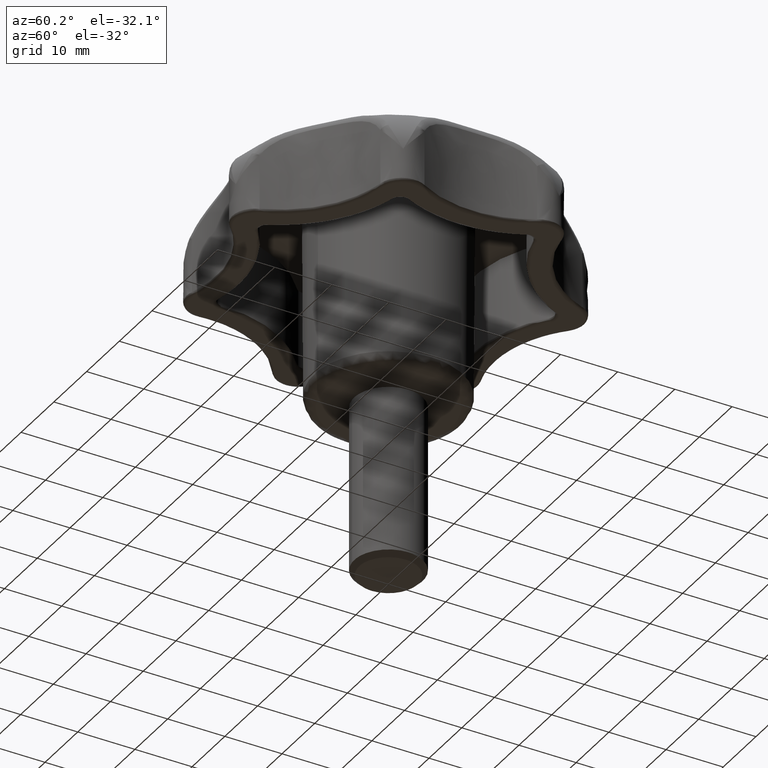
[diagram: clean part render]
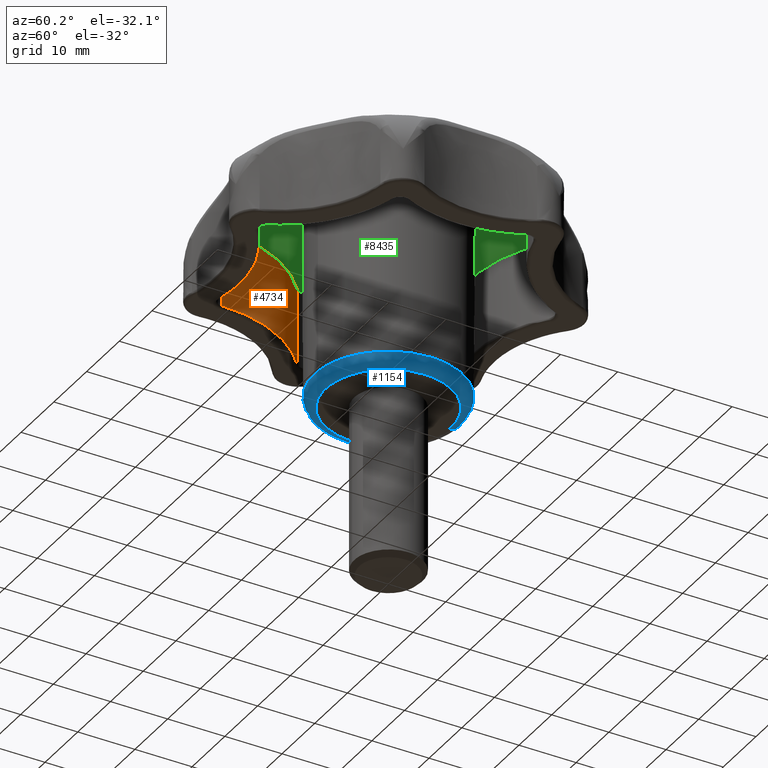
[diagram: same view with three faces highlighted in distinct colors, each labeled with its STEP entity id]
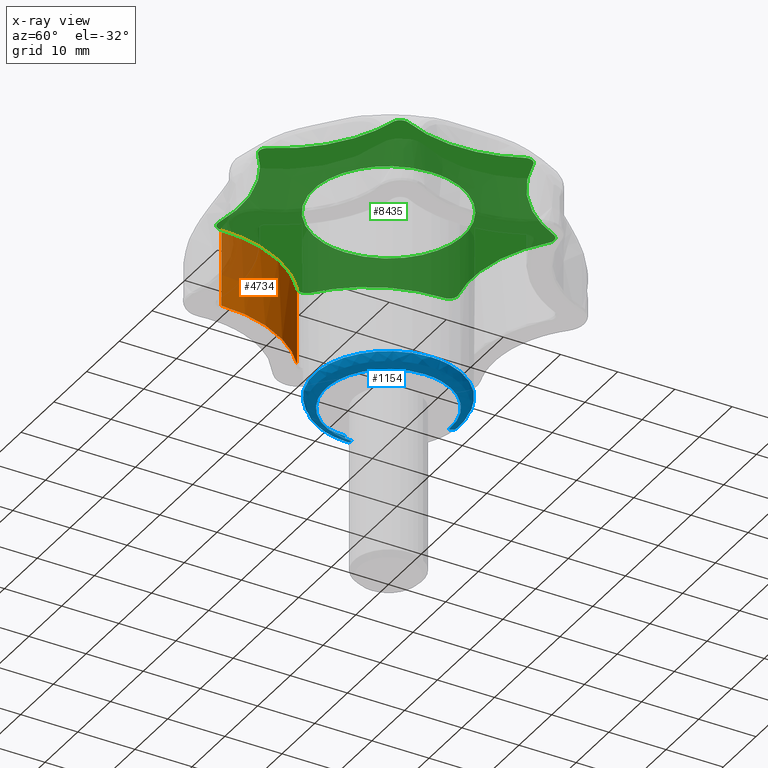
[diagram: x-ray of the same camera — body ghosted, the three highlighted faces saturated]
A machine part, auxiliary view with three faces highlighted in distinct colors.
The next image is the same camera in x-ray (body ghosted, the three faces saturated) — at least one of them is partly hidden behind the body in this view.
Their STEP definitions:

[orange] entity #4734 — the highlighted face is a freeform B-spline surface patch.
#2321=CARTESIAN_POINT('',(-25.848929655001552,-1.180508095190458,21.500000000000000));
#2322=VERTEX_POINT('',#2321);
#2471=CARTESIAN_POINT('',(-17.039502153280051,-19.473472969081499,21.500000000000000));
#2472=VERTEX_POINT('',#2471);
#2504=CARTESIAN_POINT('',(-17.039502153280040,-19.473472969081509,21.500000000000000));
#2505=CARTESIAN_POINT('',(-16.945132652359913,-8.160346250905121,21.500000000000004));
#2506=CARTESIAN_POINT('',(-25.848929655001559,-1.180508095190481,21.500000000000000));
#2514=(BOUNDED_CURVE()B_SPLINE_CURVE(2,(#2504,#2505,#2506),.UNSPECIFIED.,.F.,.U.)CURVE()GEOMETRIC_REPRESENTATION_ITEM()QUASI_UNIFORM_CURVE()RATIONAL_B_SPLINE_CURVE((1.0,0.897318369764951,1.0))REPRESENTATION_ITEM(''));
#2515=EDGE_CURVE('',#2472,#2322,#2514,.T.);
#4669=CARTESIAN_POINT('',(-25.848929655001552,-1.180508095190458,34.999712895857549));
#4670=VERTEX_POINT('',#4669);
#4671=CARTESIAN_POINT('',(-25.848929655001552,-1.180508095190458,34.999712895857549));
#4672=CARTESIAN_POINT('',(-25.848929655001552,-1.180508095190458,21.500000000000000));
#4673=QUASI_UNIFORM_CURVE('',1,(#4671,#4672),.UNSPECIFIED.,.F.,.U.);
#4674=EDGE_CURVE('',#4670,#2322,#4673,.T.);
#4696=CARTESIAN_POINT('',(-17.062260714837759,-20.322365941120339,35.337205718253998));
#4697=CARTESIAN_POINT('',(-17.062260714837759,-20.322365941120339,21.154069857043648));
#4698=CARTESIAN_POINT('',(-16.496879289862349,-7.840462291901449,35.337205718253990));
#4699=CARTESIAN_POINT('',(-16.496879289862349,-7.840462291901449,21.154069857043641));
#4700=CARTESIAN_POINT('',(-26.660436675473299,-0.572747648804610,35.337205718253990));
#4701=CARTESIAN_POINT('',(-26.660436675473299,-0.572747648804610,21.154069857043638));
#4709=(BOUNDED_SURFACE()B_SPLINE_SURFACE(1,2,((#4696,#4698,#4700),(#4697,#4699,#4701)),.UNSPECIFIED.,.F.,.F.,.U.)B_SPLINE_SURFACE_WITH_KNOTS((2,2),(3,3),(0.0,14.183135861210349),(0.0,23.375953986370209),.UNSPECIFIED.)GEOMETRIC_REPRESENTATION_ITEM()RATIONAL_B_SPLINE_SURFACE(((1.0,0.874871321059215,0.991283316149242),(1.0,0.874871321059215,0.991283316149242)))REPRESENTATION_ITEM('')SURFACE());
#4710=CARTESIAN_POINT('',(-17.039502153280051,-19.473472969081499,34.999712895857549));
#4711=VERTEX_POINT('',#4710);
#4712=CARTESIAN_POINT('',(-17.039502153280051,-19.473472969081499,34.999712895857549));
#4713=CARTESIAN_POINT('',(-17.039502153280051,-19.473472969081499,21.500000000000000));
#4714=QUASI_UNIFORM_CURVE('',1,(#4712,#4713),.UNSPECIFIED.,.F.,.U.);
#4715=EDGE_CURVE('',#4711,#2472,#4714,.T.);
#4716=ORIENTED_EDGE('',*,*,#4715,.T.);
#4717=ORIENTED_EDGE('',*,*,#2515,.T.);
#4718=ORIENTED_EDGE('',*,*,#4674,.F.);
#4719=CARTESIAN_POINT('',(-25.848929655001569,-1.180508095190474,34.999712895857549));
#4720=CARTESIAN_POINT('',(-16.945132652359913,-8.160346250905112,34.999712895857556));
#4721=CARTESIAN_POINT('',(-17.039502153280040,-19.473472969081499,34.999712895857549));
#4729=(BOUNDED_CURVE()B_SPLINE_CURVE(2,(#4719,#4720,#4721),.UNSPECIFIED.,.F.,.U.)CURVE()GEOMETRIC_REPRESENTATION_ITEM()QUASI_UNIFORM_CURVE()RATIONAL_B_SPLINE_CURVE((1.0,0.897318369764951,1.0))REPRESENTATION_ITEM(''));
#4730=EDGE_CURVE('',#4670,#4711,#4729,.T.);
#4731=ORIENTED_EDGE('',*,*,#4730,.T.);
#4732=EDGE_LOOP('',(#4716,#4717,#4718,#4731));
#4733=FACE_OUTER_BOUND('',#4732,.T.);
#4734=ADVANCED_FACE('',(#4733),#4709,.T.);

[blue] entity #1154 — the highlighted face is a freeform B-spline surface patch.
#857=CARTESIAN_POINT('',(13.010417000000000,0.0,1.989527999999895));
#858=VERTEX_POINT('',#857);
#859=CARTESIAN_POINT('',(8.540491611266415,-9.814833340262595,1.989527598965767));
#860=VERTEX_POINT('',#859);
#861=CARTESIAN_POINT('',(13.010417000000000,0.0,1.989527999999895));
#862=CARTESIAN_POINT('',(13.010417000000002,-5.925275674363281,1.989527999999895));
#863=CARTESIAN_POINT('',(8.540491611266415,-9.814833340262595,1.989527598965766));
#871=(BOUNDED_CURVE()B_SPLINE_CURVE(2,(#861,#862,#863),.UNSPECIFIED.,.F.,.U.)B_SPLINE_CURVE_WITH_KNOTS((3,3),(0.500000000000000,0.635463022220170),.UNSPECIFIED.)CURVE()GEOMETRIC_REPRESENTATION_ITEM()RATIONAL_B_SPLINE_CURVE((1.0,0.841295197566944,0.854579452561383))REPRESENTATION_ITEM(''));
#872=EDGE_CURVE('',#858,#860,#871,.T.);
#874=CARTESIAN_POINT('',(-0.907258681808861,12.978745401543840,1.989527999441567));
#875=VERTEX_POINT('',#874);
#876=CARTESIAN_POINT('',(-0.907258681808861,12.978745401543833,1.989527999441566));
#877=CARTESIAN_POINT('',(-0.454182154678146,13.010416999999999,1.989527999999895));
#878=CARTESIAN_POINT('',(0.0,13.010417000000000,1.989527999999895));
#879=CARTESIAN_POINT('',(13.010417000000002,13.010417000000002,1.989527999999895));
#880=CARTESIAN_POINT('',(13.010417000000000,0.0,1.989527999999895));
#888=(BOUNDED_CURVE()B_SPLINE_CURVE(2,(#876,#877,#878,#879,#880),.UNSPECIFIED.,.F.,.U.)B_SPLINE_CURVE_WITH_KNOTS((3,2,3),(0.237833686533898,0.250000000000000,0.500000000000000),.UNSPECIFIED.)CURVE()GEOMETRIC_REPRESENTATION_ITEM()RATIONAL_B_SPLINE_CURVE((0.972879876384451,0.985746277151280,1.0,0.707106781186548,1.0))REPRESENTATION_ITEM(''));
#889=EDGE_CURVE('',#875,#858,#888,.T.);
#906=CARTESIAN_POINT('',(-13.009389752163379,-0.163489418982572,1.989527999441639));
#907=VERTEX_POINT('',#906);
#921=CARTESIAN_POINT('',(1.246993208103250,-12.950519620958580,1.989528000000561));
#922=VERTEX_POINT('',#921);
#923=CARTESIAN_POINT('',(1.246993208103250,-12.950519620958582,1.989528000000561));
#924=CARTESIAN_POINT('',(0.624935142835919,-13.010416999999997,1.989527999999895));
#925=CARTESIAN_POINT('',(0.0,-13.010417000000000,1.989527999999895));
#926=CARTESIAN_POINT('',(-12.847942000447263,-13.010417000000000,1.989527999999895));
#927=CARTESIAN_POINT('',(-13.009389752163383,-0.163489418982572,1.989527999441639));
#935=(BOUNDED_CURVE()B_SPLINE_CURVE(2,(#923,#924,#925,#926,#927),.UNSPECIFIED.,.F.,.U.)B_SPLINE_CURVE_WITH_KNOTS((3,2,3),(0.733348904761854,0.750000000000000,0.997784295920063),.UNSPECIFIED.)CURVE()GEOMETRIC_REPRESENTATION_ITEM()RATIONAL_B_SPLINE_CURVE((0.963582689685472,0.980492028475721,1.0,0.709702639986191,0.994854295640179))REPRESENTATION_ITEM(''));
#936=EDGE_CURVE('',#922,#907,#935,.T.);
#1020=CARTESIAN_POINT('',(8.540491611266415,-9.814833340262595,1.989527598965766));
#1021=CARTESIAN_POINT('',(5.396043492940325,-12.551011518019743,1.989527999999895));
#1022=CARTESIAN_POINT('',(1.246993208103250,-12.950519620958580,1.989528000000561));
#1030=(BOUNDED_CURVE()B_SPLINE_CURVE(2,(#1020,#1021,#1022),.UNSPECIFIED.,.F.,.U.)B_SPLINE_CURVE_WITH_KNOTS((3,3),(0.635463022220170,0.733348904761855),.UNSPECIFIED.)CURVE()GEOMETRIC_REPRESENTATION_ITEM()RATIONAL_B_SPLINE_CURVE((0.854579452561383,0.864178684903372,0.963582689685473))REPRESENTATION_ITEM(''));
#1031=EDGE_CURVE('',#860,#922,#1030,.T.);
#1051=CARTESIAN_POINT('',(-0.906972034144548,12.974655071517804,2.128429248260468));
#1052=CARTESIAN_POINT('',(-0.535643338611561,13.000612196425353,2.128429248260467));
#1053=CARTESIAN_POINT('',(-0.163437893612326,13.005289714209153,2.128429248260467));
#1054=CARTESIAN_POINT('',(12.841851820596823,13.168727607821483,2.128429248260468));
#1055=CARTESIAN_POINT('',(13.005289714209153,0.163437893612327,2.128429248260467));
#1056=CARTESIAN_POINT('',(13.168727607821483,-12.841851820596823,2.128429248260468));
#1057=CARTESIAN_POINT('',(0.163437893612327,-13.005289714209153,2.128429248260467));
#1058=CARTESIAN_POINT('',(-12.841851820596823,-13.168727607821483,2.128429248260468));
#1059=CARTESIAN_POINT('',(-13.005289714209153,-0.163437893612328,2.128429248260467));
#1060=CARTESIAN_POINT('',(-0.917211990149329,13.121142385467740,-0.153632075987384));
#1061=CARTESIAN_POINT('',(-0.541690894671886,13.147392573233967,-0.153632075987384));
#1062=CARTESIAN_POINT('',(-0.165283150993037,13.152122901440270,-0.153632075987384));
#1063=CARTESIAN_POINT('',(12.986839750447235,13.317406052433311,-0.153632075987384));
#1064=CARTESIAN_POINT('',(13.152122901440270,0.165283150993038,-0.153632075987384));
#1065=CARTESIAN_POINT('',(13.317406052433313,-12.986839750447235,-0.153632075987384));
#1066=CARTESIAN_POINT('',(0.165283150993039,-13.152122901440270,-0.153632075987384));
#1067=CARTESIAN_POINT('',(-12.986839750447235,-13.317406052433313,-0.153632075987384));
#1068=CARTESIAN_POINT('',(-13.152122901440270,-0.165283150993040,-0.153632075987384));
#1069=CARTESIAN_POINT('',(-0.758130643400704,10.845410031357495,0.004806098224471));
#1070=CARTESIAN_POINT('',(-0.447739967327553,10.867107383719150,0.004806098224471));
#1071=CARTESIAN_POINT('',(-0.136616423412919,10.871017283289861,0.004806098224471));
#1072=CARTESIAN_POINT('',(10.734400859876940,11.007633706702780,0.004806098224471));
#1073=CARTESIAN_POINT('',(10.871017283289861,0.136616423412920,0.004806098224471));
#1074=CARTESIAN_POINT('',(11.007633706702780,-10.734400859876940,0.004806098224471));
#1075=CARTESIAN_POINT('',(0.136616423412921,-10.871017283289861,0.004806098224471));
#1076=CARTESIAN_POINT('',(-10.734400859876938,-11.007633706702782,0.004806098224471));
#1077=CARTESIAN_POINT('',(-10.871017283289861,-0.136616423412921,0.004806098224471));
#1085=(BOUNDED_SURFACE()B_SPLINE_SURFACE(2,2,((#1051,#1060,#1069),(#1052,#1061,#1070),(#1053,#1062,#1071),(#1054,#1063,#1072),(#1055,#1064,#1073),(#1056,#1065,#1074),(#1057,#1066,#1075),(#1058,#1067,#1076),(#1059,#1068,#1077)),.UNSPECIFIED.,.F.,.F.,.U.)B_SPLINE_SURFACE_WITH_KNOTS((3,2,2,2,3),(3,3),(0.0,0.861982017645189,22.411553010047299,43.961124002449417,65.510694994851534),(0.0,3.631259707169273),.UNSPECIFIED.)GEOMETRIC_REPRESENTATION_ITEM()RATIONAL_B_SPLINE_SURFACE(((0.893563128826322,0.588938691914255,0.895626370215691),(0.903415996384335,0.595432620260249,0.905501988090378),(0.914125634146218,0.602491237442276,0.916236354455292),(0.646384434761244,0.426025639600907,0.647876939404978),(0.914125634146218,0.602491237442276,0.916236354455292),(0.646384434761244,0.426025639600907,0.647876939404978),(0.914125634146218,0.602491237442276,0.916236354455292),(0.646384434761244,0.426025639600907,0.647876939404978),(0.914125634146218,0.602491237442276,0.916236354455292)))REPRESENTATION_ITEM('')SURFACE());
#1086=CARTESIAN_POINT('',(-0.767794145138722,10.983641448051660,1.564987E-015));
#1087=VERTEX_POINT('',#1086);
#1088=CARTESIAN_POINT('',(11.010444415883899,0.0,0.0));
#1089=VERTEX_POINT('',#1088);
#1090=CARTESIAN_POINT('',(-0.767794145138721,10.983641448051662,1.564987E-015));
#1091=CARTESIAN_POINT('',(-0.384364931463476,11.010444415883898,0.0));
#1092=CARTESIAN_POINT('',(0.0,11.010444415883899,0.0));
#1093=CARTESIAN_POINT('',(11.010444415883899,11.010444415883899,0.0));
#1094=CARTESIAN_POINT('',(11.010444415883899,0.0,0.0));
#1102=(BOUNDED_CURVE()B_SPLINE_CURVE(2,(#1090,#1091,#1092,#1093,#1094),.UNSPECIFIED.,.F.,.U.)B_SPLINE_CURVE_WITH_KNOTS((3,2,3),(0.237833684927699,0.250000000000000,0.500000000000000),.UNSPECIFIED.)CURVE()GEOMETRIC_REPRESENTATION_ITEM()RATIONAL_B_SPLINE_CURVE((0.972879872987201,0.985746275269500,1.0,0.707106781186548,1.0))REPRESENTATION_ITEM(''));
#1103=EDGE_CURVE('',#1087,#1089,#1102,.T.);
#1104=ORIENTED_EDGE('',*,*,#1103,.F.);
#1105=CARTESIAN_POINT('',(-0.907258681808861,12.978745401543836,1.989527999441566));
#1106=CARTESIAN_POINT('',(-0.906532248723201,12.968353448674080,0.000000096980009));
#1107=CARTESIAN_POINT('',(-0.767794145138722,10.983641448051658,1.564987E-015));
#1115=(BOUNDED_CURVE()B_SPLINE_CURVE(2,(#1105,#1106,#1107),.UNSPECIFIED.,.F.,.U.)B_SPLINE_CURVE_WITH_KNOTS((3,3),(-1.729315948450103,-0.265249258991811),.UNSPECIFIED.)CURVE()GEOMETRIC_REPRESENTATION_ITEM()RATIONAL_B_SPLINE_CURVE((0.867155928361317,0.615439598598310,0.869031694328936))REPRESENTATION_ITEM(''));
#1116=EDGE_CURVE('',#875,#1087,#1115,.T.);
#1117=ORIENTED_EDGE('',*,*,#1116,.F.);
#1118=ORIENTED_EDGE('',*,*,#889,.T.);
#1119=ORIENTED_EDGE('',*,*,#872,.T.);
#1120=ORIENTED_EDGE('',*,*,#1031,.T.);
#1121=ORIENTED_EDGE('',*,*,#936,.T.);
#1122=CARTESIAN_POINT('',(-11.009575081032260,-0.138357684057013,4.058610E-016));
#1123=VERTEX_POINT('',#1122);
#1124=CARTESIAN_POINT('',(-13.009389752163381,-0.163489418982572,1.989527999441639));
#1125=CARTESIAN_POINT('',(-12.998973262192621,-0.163358514556927,7.079282E-009));
#1126=CARTESIAN_POINT('',(-11.009575081032263,-0.138357684057013,4.058610E-016));
#1134=(BOUNDED_CURVE()B_SPLINE_CURVE(2,(#1124,#1125,#1126),.UNSPECIFIED.,.F.,.U.)B_SPLINE_CURVE_WITH_KNOTS((3,3),(-1.729315948450178,-0.265249212038928),.UNSPECIFIED.)CURVE()GEOMETRIC_REPRESENTATION_ITEM()RATIONAL_B_SPLINE_CURVE((0.887110774847553,0.629601982949969,0.889029722266133))REPRESENTATION_ITEM(''));
#1135=EDGE_CURVE('',#907,#1123,#1134,.T.);
#1136=ORIENTED_EDGE('',*,*,#1135,.T.);
#1137=CARTESIAN_POINT('',(11.010444415883899,0.0,0.0));
#1138=CARTESIAN_POINT('',(11.010444415883899,-11.010444415883899,0.0));
#1139=CARTESIAN_POINT('',(0.0,-11.010444415883899,0.0));
#1140=CARTESIAN_POINT('',(-10.872945213577532,-11.010444415883899,0.0));
#1141=CARTESIAN_POINT('',(-11.009575081032263,-0.138357684057013,4.058610E-016));
#1149=(BOUNDED_CURVE()B_SPLINE_CURVE(2,(#1137,#1138,#1139,#1140,#1141),.UNSPECIFIED.,.F.,.U.)B_SPLINE_CURVE_WITH_KNOTS((3,2,3),(0.500000000000000,0.750000000000000,0.997784295910582),.UNSPECIFIED.)CURVE()GEOMETRIC_REPRESENTATION_ITEM()RATIONAL_B_SPLINE_CURVE((1.0,0.707106781186548,1.0,0.709702639997299,0.994854295618357))REPRESENTATION_ITEM(''));
#1150=EDGE_CURVE('',#1089,#1123,#1149,.T.);
#1151=ORIENTED_EDGE('',*,*,#1150,.F.);
#1152=EDGE_LOOP('',(#1104,#1117,#1118,#1119,#1120,#1121,#1136,#1151));
#1153=FACE_OUTER_BOUND('',#1152,.T.);
#1154=ADVANCED_FACE('',(#1153),#1085,.T.);

[green] entity #8435 — the highlighted face is a freeform B-spline surface patch.
#938=CARTESIAN_POINT('',(1.263554077127847,-13.122567764419060,34.999712816159203));
#939=VERTEX_POINT('',#938);
#945=CARTESIAN_POINT('',(-13.183260357310299,0.0,34.999712895857549));
#946=VERTEX_POINT('',#945);
#947=CARTESIAN_POINT('',(1.263554077127846,-13.122567764419053,34.999712816159203));
#948=CARTESIAN_POINT('',(0.633234669423789,-13.183260357310305,34.999712895857556));
#949=CARTESIAN_POINT('',(0.0,-13.183260357310299,34.999712895857549));
#950=CARTESIAN_POINT('',(-13.183260357310301,-13.183260357310301,34.999712895857549));
#951=CARTESIAN_POINT('',(-13.183260357310299,0.0,34.999712895857549));
#959=(BOUNDED_CURVE()B_SPLINE_CURVE(2,(#947,#948,#949,#950,#951),.UNSPECIFIED.,.F.,.U.)B_SPLINE_CURVE_WITH_KNOTS((3,2,3),(0.733348975281955,0.750000000000000,1.0),.UNSPECIFIED.)CURVE()GEOMETRIC_REPRESENTATION_ITEM()RATIONAL_B_SPLINE_CURVE((0.963582832913126,0.980492111095157,1.0,0.707106781186548,1.0))REPRESENTATION_ITEM(''));
#960=EDGE_CURVE('',#939,#946,#959,.T.);
#962=CARTESIAN_POINT('',(13.183260357310299,0.0,34.999712895857549));
#963=VERTEX_POINT('',#962);
#964=CARTESIAN_POINT('',(-13.183260357310299,0.0,34.999712895857549));
#965=CARTESIAN_POINT('',(-13.183260357310301,13.183260357310301,34.999712895857549));
#966=CARTESIAN_POINT('',(0.0,13.183260357310299,34.999712895857549));
#967=CARTESIAN_POINT('',(13.183260357310301,13.183260357310301,34.999712895857549));
#968=CARTESIAN_POINT('',(13.183260357310299,0.0,34.999712895857549));
#976=(BOUNDED_CURVE()B_SPLINE_CURVE(2,(#964,#965,#966,#967,#968),.UNSPECIFIED.,.F.,.U.)B_SPLINE_CURVE_WITH_KNOTS((3,2,3),(0.0,0.250000000000000,0.500000000000000),.UNSPECIFIED.)CURVE()GEOMETRIC_REPRESENTATION_ITEM()RATIONAL_B_SPLINE_CURVE((1.0,0.707106781186548,1.0,0.707106781186548,1.0))REPRESENTATION_ITEM(''));
#977=EDGE_CURVE('',#946,#963,#976,.T.);
#979=CARTESIAN_POINT('',(8.653953647450940,-9.945221963590065,34.999712813824132));
#980=VERTEX_POINT('',#979);
#981=CARTESIAN_POINT('',(13.183260357310299,0.0,34.999712895857549));
#982=CARTESIAN_POINT('',(13.183260357310294,-6.003991974046724,34.999712895857549));
#983=CARTESIAN_POINT('',(8.653953647450940,-9.945221963590065,34.999712813824132));
#991=(BOUNDED_CURVE()B_SPLINE_CURVE(2,(#981,#982,#983),.UNSPECIFIED.,.F.,.U.)B_SPLINE_CURVE_WITH_KNOTS((3,3),(0.500000000000000,0.635463003754399),.UNSPECIFIED.)CURVE()GEOMETRIC_REPRESENTATION_ITEM()RATIONAL_B_SPLINE_CURVE((1.0,0.841295219200941,0.854579448939674))REPRESENTATION_ITEM(''));
#992=EDGE_CURVE('',#963,#980,#991,.T.);
#1034=CARTESIAN_POINT('',(8.653953647450940,-9.945221963590065,34.999712813824139));
#1035=CARTESIAN_POINT('',(5.467728531620133,-12.717753564730348,34.999712895857542));
#1036=CARTESIAN_POINT('',(1.263554077127846,-13.122567764419053,34.999712816159203));
#1044=(BOUNDED_CURVE()B_SPLINE_CURVE(2,(#1034,#1035,#1036),.UNSPECIFIED.,.F.,.U.)B_SPLINE_CURVE_WITH_KNOTS((3,3),(0.635463003754400,0.733348975281955),.UNSPECIFIED.)CURVE()GEOMETRIC_REPRESENTATION_ITEM()RATIONAL_B_SPLINE_CURVE((0.854579448939674,0.864178673066793,0.963582832913126))REPRESENTATION_ITEM(''));
#1045=EDGE_CURVE('',#980,#939,#1044,.T.);
#4224=CARTESIAN_POINT('',(4.601017605025820,-25.463530358067899,34.999712895857549));
#4225=VERTEX_POINT('',#4224);
#4232=CARTESIAN_POINT('',(-15.193586375749200,-20.945540759110958,34.999712895857549));
#4233=VERTEX_POINT('',#4232);
#4239=CARTESIAN_POINT('',(-15.193586375749209,-20.945540759110919,34.999712895857549));
#4240=CARTESIAN_POINT('',(-4.185102419384345,-18.336129714499211,34.999712895857549));
#4241=CARTESIAN_POINT('',(4.601017605025820,-25.463530358067899,34.999712895857549));
#4249=(BOUNDED_CURVE()B_SPLINE_CURVE(2,(#4239,#4240,#4241),.UNSPECIFIED.,.F.,.U.)CURVE()GEOMETRIC_REPRESENTATION_ITEM()QUASI_UNIFORM_CURVE()RATIONAL_B_SPLINE_CURVE((1.0,0.897318367529791,1.0))REPRESENTATION_ITEM(''));
#4250=EDGE_CURVE('',#4233,#4225,#4249,.T.);
#4269=CARTESIAN_POINT('',(6.902837418404320,-24.938154919497350,34.999712895857549));
#4270=VERTEX_POINT('',#4269);
#4278=CARTESIAN_POINT('',(6.902837418404320,-24.938154919497350,34.999712895857549));
#4279=CARTESIAN_POINT('',(6.591563297664797,-25.598557667971736,34.999712895857549));
#4280=CARTESIAN_POINT('',(5.879783564327663,-25.761016830979301,34.999712895857549));
#4281=CARTESIAN_POINT('',(5.168003830990528,-25.923475993986855,34.999712895857549));
#4282=CARTESIAN_POINT('',(4.601017605025824,-25.463530358067899,34.999712895857549));
#4290=(BOUNDED_CURVE()B_SPLINE_CURVE(2,(#4278,#4279,#4280,#4281,#4282),.UNSPECIFIED.,.F.,.U.)B_SPLINE_CURVE_WITH_KNOTS((3,2,3),(0.0,0.500000000000000,1.0),.UNSPECIFIED.)CURVE()GEOMETRIC_REPRESENTATION_ITEM()RATIONAL_B_SPLINE_CURVE((1.0,0.899151415982226,1.0,0.899151415982226,1.0))REPRESENTATION_ITEM(''));
#4291=EDGE_CURVE('',#4270,#4225,#4290,.T.);
#4310=CARTESIAN_POINT('',(22.776877538892052,-12.279031163723101,34.999712895857549));
#4311=VERTEX_POINT('',#4310);
#4319=CARTESIAN_POINT('',(6.902837418404300,-24.938154919497340,34.999712895857549));
#4320=CARTESIAN_POINT('',(11.726395205329636,-14.704434586903629,34.999712895857549));
#4321=CARTESIAN_POINT('',(22.776877538892052,-12.279031163723101,34.999712895857549));
#4329=(BOUNDED_CURVE()B_SPLINE_CURVE(2,(#4319,#4320,#4321),.UNSPECIFIED.,.F.,.U.)CURVE()GEOMETRIC_REPRESENTATION_ITEM()QUASI_UNIFORM_CURVE()RATIONAL_B_SPLINE_CURVE((1.0,0.897318369884232,1.0))REPRESENTATION_ITEM(''));
#4330=EDGE_CURVE('',#4270,#4311,#4329,.T.);
#4349=CARTESIAN_POINT('',(23.801283406814701,-10.151829418366839,34.999712895857549));
#4350=VERTEX_POINT('',#4349);
#4358=CARTESIAN_POINT('',(23.801283406814701,-10.151829418366839,34.999712895857549));
#4359=CARTESIAN_POINT('',(24.123531145737036,-10.806947689908835,34.999712895857549));
#4360=CARTESIAN_POINT('',(23.806759459316591,-11.464731281701029,34.999712895857549));
#4361=CARTESIAN_POINT('',(23.489987772896136,-12.122514873493220,34.999712895857549));
#4362=CARTESIAN_POINT('',(22.776877538892052,-12.279031163723090,34.999712895857549));
#4370=(BOUNDED_CURVE()B_SPLINE_CURVE(2,(#4358,#4359,#4360,#4361,#4362),.UNSPECIFIED.,.F.,.U.)B_SPLINE_CURVE_WITH_KNOTS((3,2,3),(0.0,0.500000000000000,1.0),.UNSPECIFIED.)CURVE()GEOMETRIC_REPRESENTATION_ITEM()RATIONAL_B_SPLINE_CURVE((1.0,0.899151385852331,1.0,0.899151385852331,1.0))REPRESENTATION_ITEM(''));
#4371=EDGE_CURVE('',#4350,#4311,#4370,.T.);
#4390=CARTESIAN_POINT('',(23.801283560425151,10.151829168367360,34.999712895857549));
#4391=VERTEX_POINT('',#4390);
#4399=CARTESIAN_POINT('',(23.801283406814729,-10.151829418366830,34.999712895857549));
#4400=CARTESIAN_POINT('',(18.807677982301829,-0.000000087219858,34.999712895857549));
#4401=CARTESIAN_POINT('',(23.801283560425151,10.151829168367360,34.999712895857549));
#4409=(BOUNDED_CURVE()B_SPLINE_CURVE(2,(#4399,#4400,#4401),.UNSPECIFIED.,.F.,.U.)CURVE()GEOMETRIC_REPRESENTATION_ITEM()QUASI_UNIFORM_CURVE()RATIONAL_B_SPLINE_CURVE((1.0,0.897318375118684,1.0))REPRESENTATION_ITEM(''));
#4410=EDGE_CURVE('',#4350,#4391,#4409,.T.);
#4429=CARTESIAN_POINT('',(22.776877403655551,12.279030489579259,34.999712895857549));
#4430=VERTEX_POINT('',#4429);
#4438=CARTESIAN_POINT('',(22.776877403655551,12.279030489579259,34.999712895857549));
#4439=CARTESIAN_POINT('',(23.489987433965130,12.122514048516353,34.999712895857549));
#4440=CARTESIAN_POINT('',(23.806759254796859,11.464730706390700,34.999712895857549));
#4441=CARTESIAN_POINT('',(24.123531075628595,10.806947364265053,34.999712895857549));
#4442=CARTESIAN_POINT('',(23.801283560425130,10.151829168367369,34.999712895857549));
#4450=(BOUNDED_CURVE()B_SPLINE_CURVE(2,(#4438,#4439,#4440,#4441,#4442),.UNSPECIFIED.,.F.,.U.)B_SPLINE_CURVE_WITH_KNOTS((3,2,3),(0.0,0.500000000000000,1.0),.UNSPECIFIED.)CURVE()GEOMETRIC_REPRESENTATION_ITEM()RATIONAL_B_SPLINE_CURVE((1.0,0.899151425155168,1.0,0.899151425155168,1.0))REPRESENTATION_ITEM(''));
#4451=EDGE_CURVE('',#4430,#4391,#4450,.T.);
#4470=CARTESIAN_POINT('',(6.902837016191000,24.938155092206699,34.999712895857549));
#4471=VERTEX_POINT('',#4470);
#4479=CARTESIAN_POINT('',(22.776877403655561,12.279030489579281,34.999712895857549));
#4480=CARTESIAN_POINT('',(11.726395009851055,14.704434623547593,34.999712895857549));
#4481=CARTESIAN_POINT('',(6.902837016191000,24.938155092206699,34.999712895857549));
#4489=(BOUNDED_CURVE()B_SPLINE_CURVE(2,(#4479,#4480,#4481),.UNSPECIFIED.,.F.,.U.)CURVE()GEOMETRIC_REPRESENTATION_ITEM()QUASI_UNIFORM_CURVE()RATIONAL_B_SPLINE_CURVE((1.0,0.897318366620468,1.0))REPRESENTATION_ITEM(''));
#4490=EDGE_CURVE('',#4430,#4471,#4489,.T.);
#4509=CARTESIAN_POINT('',(4.601017722937180,25.463529842958799,34.999712895857549));
#4510=VERTEX_POINT('',#4509);
#4518=CARTESIAN_POINT('',(4.601017722937180,25.463529842958799,34.999712895857549));
#4519=CARTESIAN_POINT('',(5.168003555900789,25.923475916824010,34.999712895857549));
#4520=CARTESIAN_POINT('',(5.879783291029333,25.761016893357869,34.999712895857549));
#4521=CARTESIAN_POINT('',(6.591563026157877,25.598557869891714,34.999712895857549));
#4522=CARTESIAN_POINT('',(6.902837016191018,24.938155092206710,34.999712895857549));
#4530=(BOUNDED_CURVE()B_SPLINE_CURVE(2,(#4518,#4519,#4520,#4521,#4522),.UNSPECIFIED.,.F.,.U.)B_SPLINE_CURVE_WITH_KNOTS((3,2,3),(0.0,0.500000000000000,1.0),.UNSPECIFIED.)CURVE()GEOMETRIC_REPRESENTATION_ITEM()RATIONAL_B_SPLINE_CURVE((1.0,0.899151422894515,1.0,0.899151422894515,1.0))REPRESENTATION_ITEM(''));
#4531=EDGE_CURVE('',#4510,#4471,#4530,.T.);
#4550=CARTESIAN_POINT('',(-15.193585953755500,20.945540820057950,34.999712895857549));
#4551=VERTEX_POINT('',#4550);
#4559=CARTESIAN_POINT('',(4.601017722937188,25.463529842958799,34.999712895857549));
#4560=CARTESIAN_POINT('',(-4.185102368894697,18.336129903000661,34.999712895857563));
#4561=CARTESIAN_POINT('',(-15.193585953755500,20.945540820057950,34.999712895857549));
#4569=(BOUNDED_CURVE()B_SPLINE_CURVE(2,(#4559,#4560,#4561),.UNSPECIFIED.,.F.,.U.)CURVE()GEOMETRIC_REPRESENTATION_ITEM()QUASI_UNIFORM_CURVE()RATIONAL_B_SPLINE_CURVE((1.0,0.897318373570051,1.0))REPRESENTATION_ITEM(''));
#4570=EDGE_CURVE('',#4510,#4551,#4569,.T.);
#4589=CARTESIAN_POINT('',(-17.039502153280051,19.473471969081501,34.999712895857549));
#4590=VERTEX_POINT('',#4589);
#4598=CARTESIAN_POINT('',(-17.039502153280051,19.473471969081501,34.999712895857549));
#4599=CARTESIAN_POINT('',(-17.045591706692093,20.203530996049693,34.999712895857549));
#4600=CARTESIAN_POINT('',(-16.474788730096648,20.658731201924159,34.999712895857549));
#4601=CARTESIAN_POINT('',(-15.903985753501196,21.113931407798621,34.999712895857549));
#4602=CARTESIAN_POINT('',(-15.193585953755500,20.945540820057928,34.999712895857549));
#4610=(BOUNDED_CURVE()B_SPLINE_CURVE(2,(#4598,#4599,#4600,#4601,#4602),.UNSPECIFIED.,.F.,.U.)B_SPLINE_CURVE_WITH_KNOTS((3,2,3),(0.0,0.500000000000000,1.0),.UNSPECIFIED.)CURVE()GEOMETRIC_REPRESENTATION_ITEM()RATIONAL_B_SPLINE_CURVE((1.0,0.899151432607539,1.0,0.899151432607539,1.0))REPRESENTATION_ITEM(''));
#4611=EDGE_CURVE('',#4590,#4551,#4610,.T.);
#4630=CARTESIAN_POINT('',(-25.848928935543402,1.180507493791926,34.999712895857549));
#4631=VERTEX_POINT('',#4630);
#4639=CARTESIAN_POINT('',(-17.039502153280040,19.473471969081491,34.999712895857549));
#4640=CARTESIAN_POINT('',(-16.945132656566564,8.160345755205047,34.999712895857549));
#4641=CARTESIAN_POINT('',(-25.848928935543402,1.180507493791926,34.999712895857549));
#4649=(BOUNDED_CURVE()B_SPLINE_CURVE(2,(#4639,#4640,#4641),.UNSPECIFIED.,.F.,.U.)CURVE()GEOMETRIC_REPRESENTATION_ITEM()QUASI_UNIFORM_CURVE()RATIONAL_B_SPLINE_CURVE((1.0,0.897318377557612,1.0))REPRESENTATION_ITEM(''));
#4650=EDGE_CURVE('',#4590,#4631,#4649,.T.);
#4669=CARTESIAN_POINT('',(-25.848929655001552,-1.180508095190458,34.999712895857549));
#4670=VERTEX_POINT('',#4669);
#4678=CARTESIAN_POINT('',(-25.848929655001552,-1.180508095190458,34.999712895857549));
#4679=CARTESIAN_POINT('',(-26.423509047500811,-0.730084234752182,34.999712895857556));
#4680=CARTESIAN_POINT('',(-26.423508999999999,0.000000097593122,34.999712895857549));
#4681=CARTESIAN_POINT('',(-26.423508952499184,0.730084429938426,34.999712895857556));
#4682=CARTESIAN_POINT('',(-25.848928935543402,1.180507493791914,34.999712895857549));
#4690=(BOUNDED_CURVE()B_SPLINE_CURVE(2,(#4678,#4679,#4680,#4681,#4682),.UNSPECIFIED.,.F.,.U.)B_SPLINE_CURVE_WITH_KNOTS((3,2,3),(0.0,0.500000000000000,1.0),.UNSPECIFIED.)CURVE()GEOMETRIC_REPRESENTATION_ITEM()RATIONAL_B_SPLINE_CURVE((1.0,0.899151454122100,1.0,0.899151454122100,1.0))REPRESENTATION_ITEM(''));
#4691=EDGE_CURVE('',#4670,#4631,#4690,.T.);
#4710=CARTESIAN_POINT('',(-17.039502153280051,-19.473472969081499,34.999712895857549));
#4711=VERTEX_POINT('',#4710);
#4719=CARTESIAN_POINT('',(-25.848929655001569,-1.180508095190474,34.999712895857549));
#4720=CARTESIAN_POINT('',(-16.945132652359913,-8.160346250905112,34.999712895857556));
#4721=CARTESIAN_POINT('',(-17.039502153280040,-19.473472969081499,34.999712895857549));
#4729=(BOUNDED_CURVE()B_SPLINE_CURVE(2,(#4719,#4720,#4721),.UNSPECIFIED.,.F.,.U.)CURVE()GEOMETRIC_REPRESENTATION_ITEM()QUASI_UNIFORM_CURVE()RATIONAL_B_SPLINE_CURVE((1.0,0.897318369764951,1.0))REPRESENTATION_ITEM(''));
#4730=EDGE_CURVE('',#4670,#4711,#4729,.T.);
#4752=CARTESIAN_POINT('',(-15.193586375749200,-20.945540759110958,34.999712895857549));
#4753=CARTESIAN_POINT('',(-15.903985763689271,-21.113931211851170,34.999712895857556));
#4754=CARTESIAN_POINT('',(-16.474788494215652,-20.658731390032990,34.999712895857549));
#4755=CARTESIAN_POINT('',(-17.045591224742022,-20.203531568214824,34.999712895857556));
#4756=CARTESIAN_POINT('',(-17.039502153280051,-19.473472969081499,34.999712895857549));
#4764=(BOUNDED_CURVE()B_SPLINE_CURVE(2,(#4752,#4753,#4754,#4755,#4756),.UNSPECIFIED.,.F.,.U.)B_SPLINE_CURVE_WITH_KNOTS((3,2,3),(0.0,0.500000000000000,1.0),.UNSPECIFIED.)CURVE()GEOMETRIC_REPRESENTATION_ITEM()RATIONAL_B_SPLINE_CURVE((1.0,0.899151534469402,1.0,0.899151534469402,1.0))REPRESENTATION_ITEM(''));
#4765=EDGE_CURVE('',#4233,#4711,#4764,.T.);
#8408=CARTESIAN_POINT('',(-28.939906169571000,-28.375665231399701,34.999712895857549));
#8409=CARTESIAN_POINT('',(26.471193352216869,-28.375665231399701,34.999712895857549));
#8410=CARTESIAN_POINT('',(-28.939906169571010,28.375663254186630,34.999712895857549));
#8411=CARTESIAN_POINT('',(26.471193352216869,28.375663254186630,34.999712895857549));
#8412=B_SPLINE_SURFACE_WITH_KNOTS('',1,1,((#8408,#8410),(#8409,#8411)),.UNSPECIFIED.,.F.,.F.,.U.,(2,2),(2,2),(0.0,55.411099521787882),(0.0,56.751328485586328),.UNSPECIFIED.);
#8413=ORIENTED_EDGE('',*,*,#4765,.T.);
#8414=ORIENTED_EDGE('',*,*,#4730,.F.);
#8415=ORIENTED_EDGE('',*,*,#4691,.T.);
#8416=ORIENTED_EDGE('',*,*,#4650,.F.);
#8417=ORIENTED_EDGE('',*,*,#4611,.T.);
#8418=ORIENTED_EDGE('',*,*,#4570,.F.);
#8419=ORIENTED_EDGE('',*,*,#4531,.T.);
#8420=ORIENTED_EDGE('',*,*,#4490,.F.);
#8421=ORIENTED_EDGE('',*,*,#4451,.T.);
#8422=ORIENTED_EDGE('',*,*,#4410,.F.);
#8423=ORIENTED_EDGE('',*,*,#4371,.T.);
#8424=ORIENTED_EDGE('',*,*,#4330,.F.);
#8425=ORIENTED_EDGE('',*,*,#4291,.T.);
#8426=ORIENTED_EDGE('',*,*,#4250,.F.);
#8427=EDGE_LOOP('',(#8413,#8414,#8415,#8416,#8417,#8418,#8419,#8420,#8421,#8422,#8423,#8424,#8425,#8426));
#8428=FACE_OUTER_BOUND('',#8427,.T.);
#8429=ORIENTED_EDGE('',*,*,#977,.F.);
#8430=ORIENTED_EDGE('',*,*,#960,.F.);
#8431=ORIENTED_EDGE('',*,*,#1045,.F.);
#8432=ORIENTED_EDGE('',*,*,#992,.F.);
#8433=EDGE_LOOP('',(#8429,#8430,#8431,#8432));
#8434=FACE_BOUND('',#8433,.T.);
#8435=ADVANCED_FACE('',(#8428,#8434),#8412,.F.);